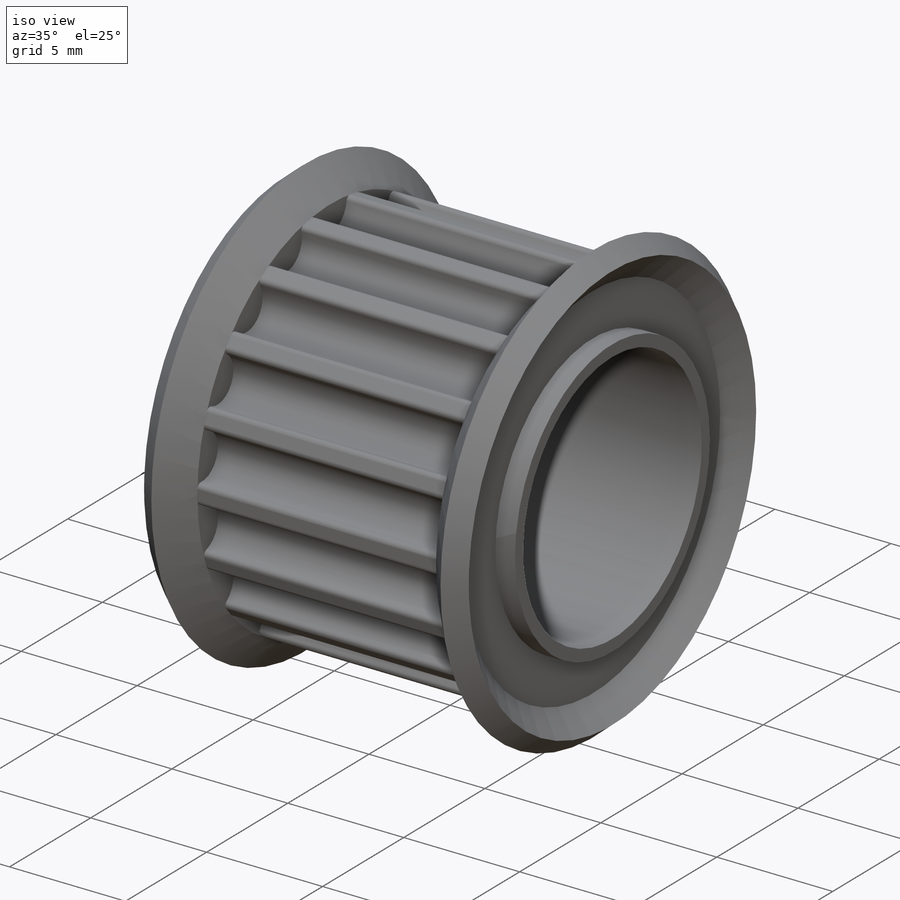
[diagram: iso view]
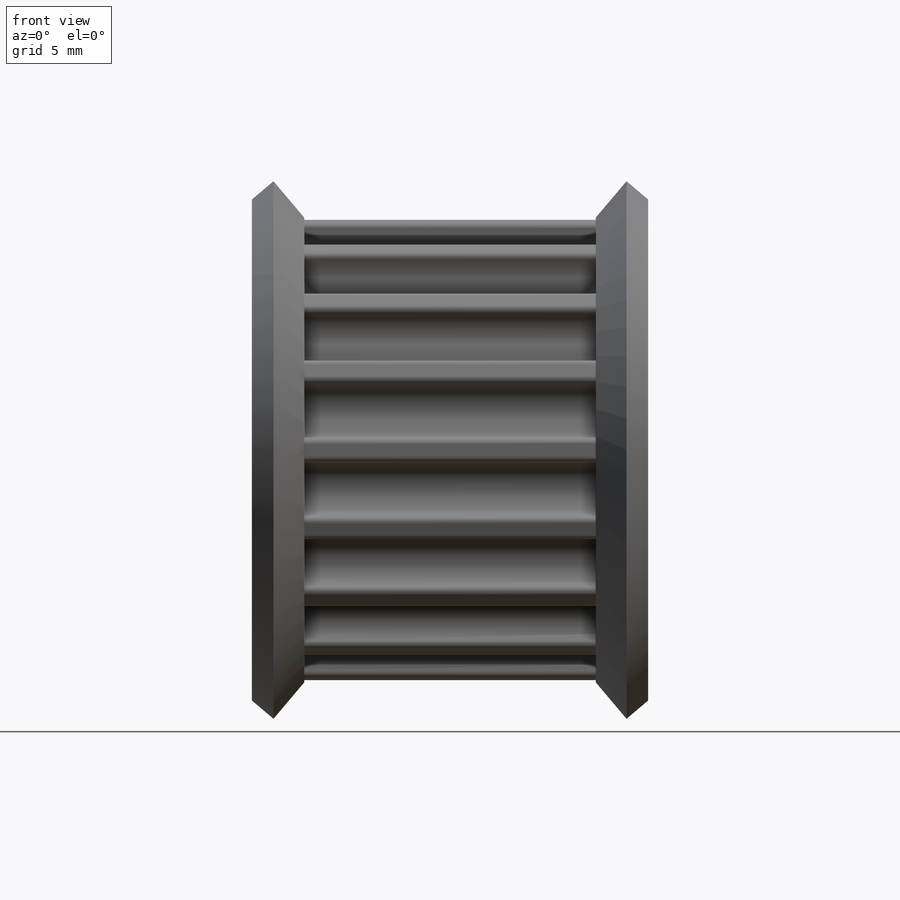
[diagram: front view]
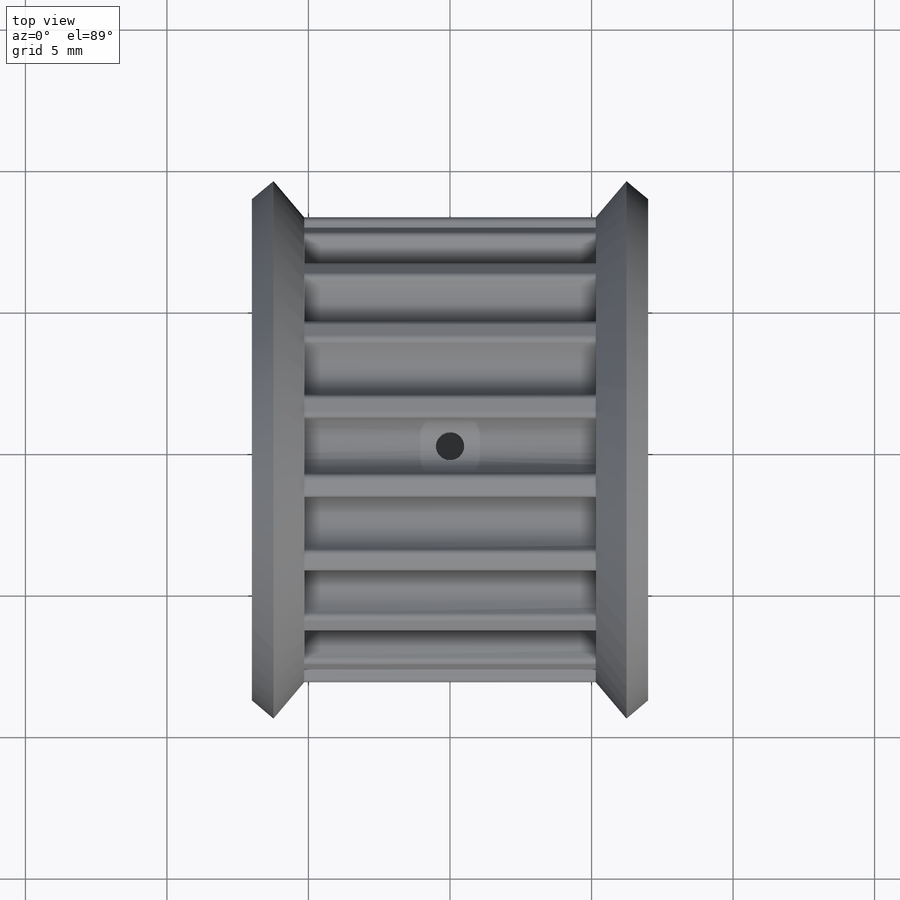
[diagram: top view]
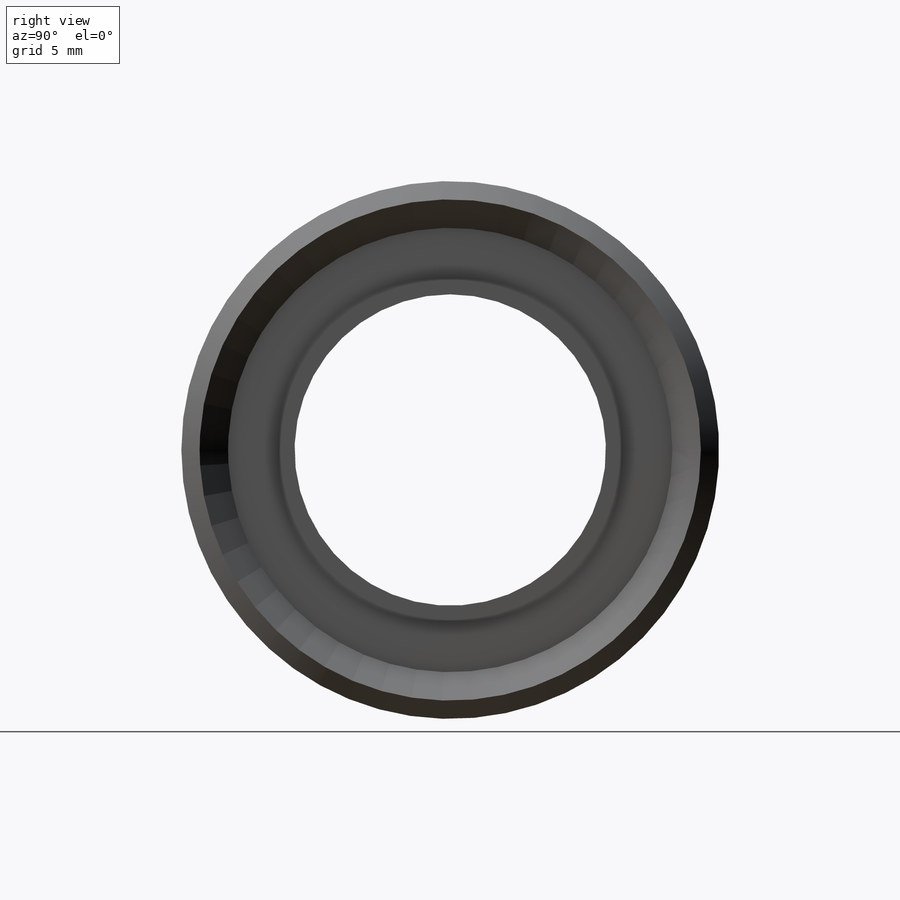
[diagram: right view]
SOLIDWORKS PART (.sldprt)
format: sldprt  version: not decoded by parser v0  size: 870,912 bytes
history: native  units: mm
features: sketch x5, revolve x2, cut_extrude x2, material x1, pattern_circular x1, cut_revolve x1 (+16 scaffold rows collapsed)
feature tree (28):
  scaffold x16  (default folders/planes/origin — collapsed)
  material  "2014-T6"
  sketch  "Sketch1"  dims[D1=16.43mm D2=8.0mm D3=14.0mm D4=10.3mm D5=17.19mm D6=12.0mm]
  revolve  "Revolve1"  Angle=360deg
  sketch  "Sketch2"  dims[c1.D2=0.2mm c1.D1=1.14mm c2.D2=~2.274505mm c2.D1=1.14mm c2.D3=2.4mm]
  cut_extrude  "Cut-Extrude1"  [1 undecoded]
  pattern_circular  "CirPattern1"  Count=18 Angle=360deg
  sketch  "Sketch3"  dims[D1=1.85mm D2=19.0mm D3=1.0mm]
  revolve  "Revolve2"  Angle=360deg
  sketch  "Sketch4"  dims[D1=11.0mm]
  cut_revolve  "Cut-Revolve1"  Angle=360deg
  sketch  "Sketch5"  dims[D1=1.0mm]
  cut_extrude  "Cut-Extrude2"  [1 undecoded]
decode coverage: 9 of 11 modeling features carry decoded parameters
note: ~ marks probable driven/reference dimensions
note: 2 parameter values undecoded
note: suppression state not decoded; provenance and decode notes live in map.json
